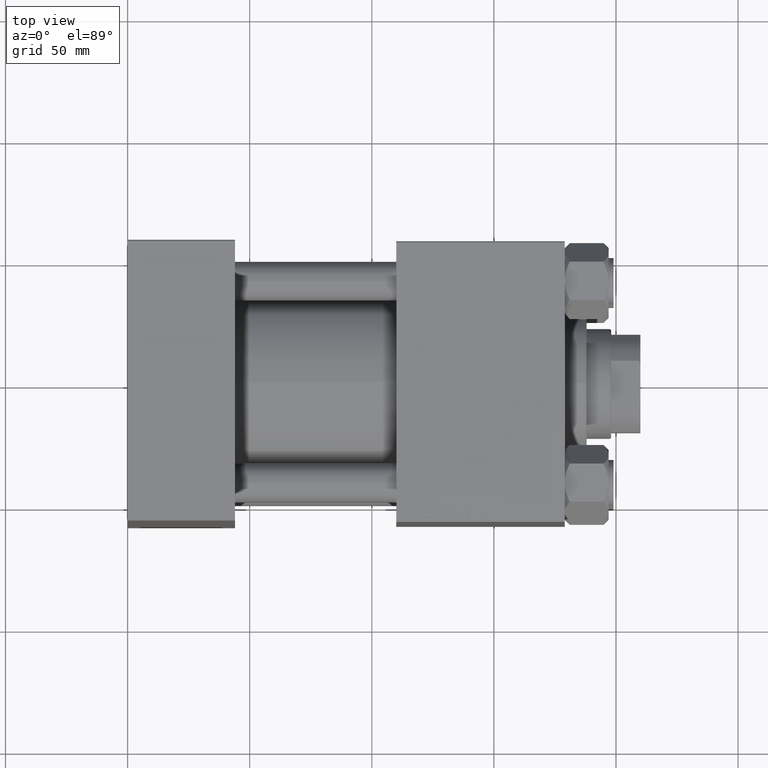
[diagram: clean part render]
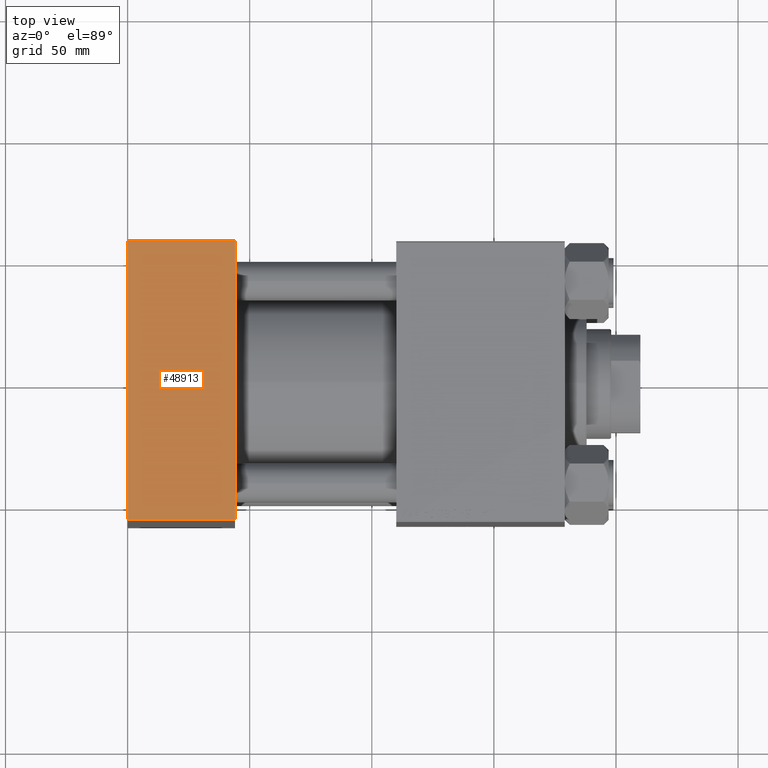
[diagram: same view with one face highlighted and labeled with its STEP entity id]
A machine part, top view. The second image highlights one B-rep face of the part: STEP entity #48913.
In plain terms, the highlighted planar face has unit normal (0, 0, -1).
Its self-contained STEP definition (entity closure, byte-faithful):
#205 = EDGE_LOOP ( 'NONE', ( #20976, #21600, #47653, #1187 ) ) ;
#1187 = ORIENTED_EDGE ( 'NONE', *, *, #18864, .T. ) ;
#1725 = VECTOR ( 'NONE', #32793, 1000.000000000000000 ) ;
#2925 = AXIS2_PLACEMENT_3D ( 'NONE', #45649, #3335, #22961 ) ;
#3015 = CARTESIAN_POINT ( 'NONE',  ( 0.000000000000000000, 57.00000000000000000, 90.00000000000000000 ) ) ;
#3335 = DIRECTION ( 'NONE',  ( 0.000000000000000000, 1.206764157201257291E-16, -1.000000000000000000 ) ) ;
#6879 = LINE ( 'NONE', #29340, #13712 ) ;
#7385 = VECTOR ( 'NONE', #45707, 1000.000000000000000 ) ;
#11766 = VERTEX_POINT ( 'NONE', #40537 ) ;
#13111 = VECTOR ( 'NONE', #27342, 1000.000000000000000 ) ;
#13712 = VECTOR ( 'NONE', #22439, 1000.000000000000000 ) ;
#18423 = CARTESIAN_POINT ( 'NONE',  ( 0.000000000000000000, 57.00000000000000000, 90.00000000000000000 ) ) ;
#18497 = EDGE_CURVE ( 'NONE', #19221, #41247, #29725, .T. ) ;
#18620 = PLANE ( 'NONE',  #2925 ) ;
#18864 = EDGE_CURVE ( 'NONE', #19221, #22097, #38579, .T. ) ;
#19221 = VERTEX_POINT ( 'NONE', #49723 ) ;
#19949 = LINE ( 'NONE', #28118, #13111 ) ;
#20976 = ORIENTED_EDGE ( 'NONE', *, *, #23549, .T. ) ;
#21600 = ORIENTED_EDGE ( 'NONE', *, *, #21844, .T. ) ;
#21844 = EDGE_CURVE ( 'NONE', #11766, #41247, #19949, .T. ) ;
#22097 = VERTEX_POINT ( 'NONE', #3015 ) ;
#22439 = DIRECTION ( 'NONE',  ( 0.000000000000000000, -1.000000000000000000, -1.206764157201257291E-16 ) ) ;
#22961 = DIRECTION ( 'NONE',  ( 0.000000000000000000, 1.000000000000000000, 1.206764157201257291E-16 ) ) ;
#23549 = EDGE_CURVE ( 'NONE', #22097, #11766, #6879, .T. ) ;
#27036 = CARTESIAN_POINT ( 'NONE',  ( 44.00000000000000000, -57.00000000000001421, 89.99999999999998579 ) ) ;
#27342 = DIRECTION ( 'NONE',  ( 1.000000000000000000, 0.000000000000000000, 0.000000000000000000 ) ) ;
#28118 = CARTESIAN_POINT ( 'NONE',  ( 44.00000000000000000, -57.00000000000001421, 89.99999999999998579 ) ) ;
#29340 = CARTESIAN_POINT ( 'NONE',  ( 0.000000000000000000, 57.50000000000000000, 90.00000000000000000 ) ) ;
#29725 = LINE ( 'NONE', #44763, #1725 ) ;
#32793 = DIRECTION ( 'NONE',  ( 0.000000000000000000, -1.000000000000000000, -1.206764157201257291E-16 ) ) ;
#38579 = LINE ( 'NONE', #18423, #7385 ) ;
#40537 = CARTESIAN_POINT ( 'NONE',  ( 0.000000000000000000, -57.00000000000001421, 89.99999999999998579 ) ) ;
#41247 = VERTEX_POINT ( 'NONE', #27036 ) ;
#44763 = CARTESIAN_POINT ( 'NONE',  ( 44.00000000000000000, 57.50000000000000000, 90.00000000000000000 ) ) ;
#45649 = CARTESIAN_POINT ( 'NONE',  ( 44.00000000000000000, 57.50000000000000000, 90.00000000000000000 ) ) ;
#45707 = DIRECTION ( 'NONE',  ( -1.000000000000000000, 0.000000000000000000, 0.000000000000000000 ) ) ;
#47653 = ORIENTED_EDGE ( 'NONE', *, *, #18497, .F. ) ;
#48913 = ADVANCED_FACE ( 'NONE', ( #49474 ), #18620, .F. ) ;
#49474 = FACE_OUTER_BOUND ( 'NONE', #205, .T. ) ;
#49723 = CARTESIAN_POINT ( 'NONE',  ( 44.00000000000000000, 57.00000000000000000, 90.00000000000000000 ) ) ;